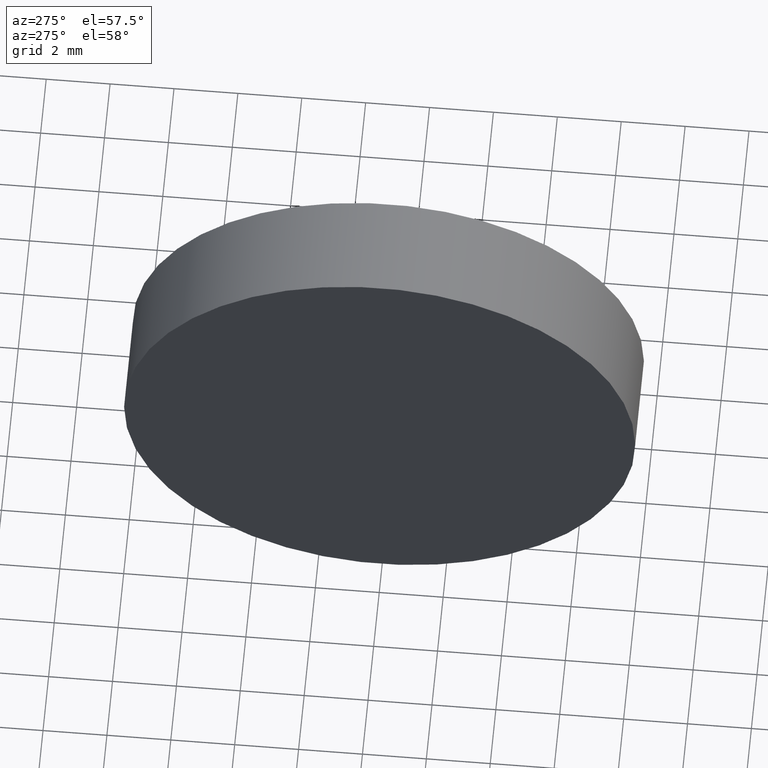
[diagram: clean part render]
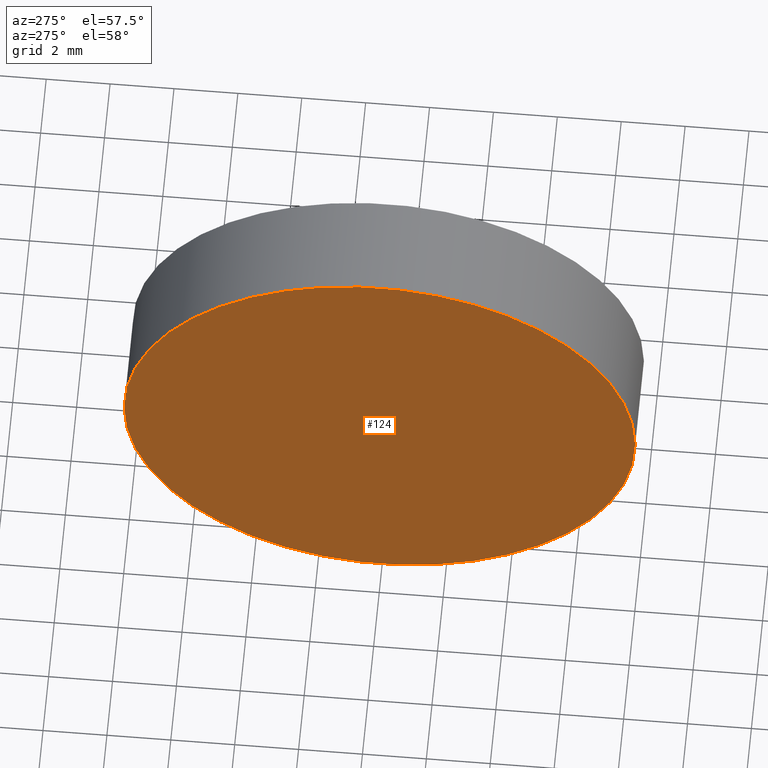
[diagram: same view with one face highlighted and labeled with its STEP entity id]
A machine part, auxiliary view. The second image highlights one B-rep face of the part: STEP entity #124.
In plain terms, the highlighted planar face has unit normal (1, -0, 0).
Its self-contained STEP definition (entity closure, byte-faithful):
#5 = DIRECTION ( 'NONE',  ( 0.0000000000000000000, -1.000000000000000000, 0.0000000000000000000 ) ) ;
#6 = VERTEX_POINT ( 'NONE', #142 ) ;
#7 = DIRECTION ( 'NONE',  ( 4.058245434298766700E-016, 1.000000000000000000, 0.0000000000000000000 ) ) ;
#8 = CARTESIAN_POINT ( 'NONE',  ( 44.85442262622448300, 34.06225218280608400, 9.797174393178827600E-016 ) ) ;
#18 = EDGE_CURVE ( 'NONE', #20, #6, #110, .T. ) ;
#20 = VERTEX_POINT ( 'NONE', #8 ) ;
#32 = PLANE ( 'NONE',  #75 ) ;
#54 = DIRECTION ( 'NONE',  ( -1.000000000000000000, 4.058245434298766700E-016, -0.0000000000000000000 ) ) ;
#67 = AXIS2_PLACEMENT_3D ( 'NONE', #81, #54, #69 ) ;
#69 = DIRECTION ( 'NONE',  ( 0.0000000000000000000, -1.000000000000000000, 0.0000000000000000000 ) ) ;
#73 = AXIS2_PLACEMENT_3D ( 'NONE', #156, #97, #5 ) ;
#74 = ORIENTED_EDGE ( 'NONE', *, *, #133, .T. ) ;
#75 = AXIS2_PLACEMENT_3D ( 'NONE', #138, #155, #7 ) ;
#81 = CARTESIAN_POINT ( 'NONE',  ( 44.85442262622448300, 26.06225218280608400, 0.0000000000000000000 ) ) ;
#88 = CIRCLE ( 'NONE', #67, 8.000000000000000000 ) ;
#97 = DIRECTION ( 'NONE',  ( -1.000000000000000000, 4.058245434298766700E-016, -0.0000000000000000000 ) ) ;
#103 = FACE_OUTER_BOUND ( 'NONE', #161, .T. ) ;
#110 = CIRCLE ( 'NONE', #73, 8.000000000000000000 ) ;
#124 = ADVANCED_FACE ( 'NONE', ( #103 ), #32, .F. ) ;
#133 = EDGE_CURVE ( 'NONE', #6, #20, #88, .T. ) ;
#138 = CARTESIAN_POINT ( 'NONE',  ( 44.85442262622448300, 26.06225218280608400, 0.0000000000000000000 ) ) ;
#142 = CARTESIAN_POINT ( 'NONE',  ( 44.85442262622448300, 18.06225218280608400, 0.0000000000000000000 ) ) ;
#153 = ORIENTED_EDGE ( 'NONE', *, *, #18, .T. ) ;
#155 = DIRECTION ( 'NONE',  ( 1.000000000000000000, -4.058245434298766700E-016, 0.0000000000000000000 ) ) ;
#156 = CARTESIAN_POINT ( 'NONE',  ( 44.85442262622448300, 26.06225218280608400, 0.0000000000000000000 ) ) ;
#161 = EDGE_LOOP ( 'NONE', ( #74, #153 ) ) ;